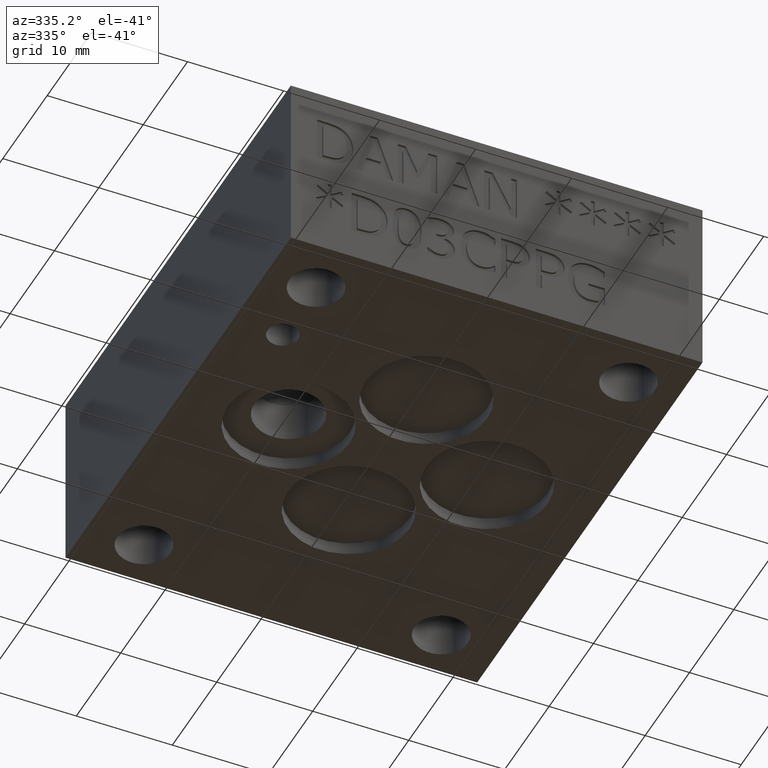
[diagram: clean part render]
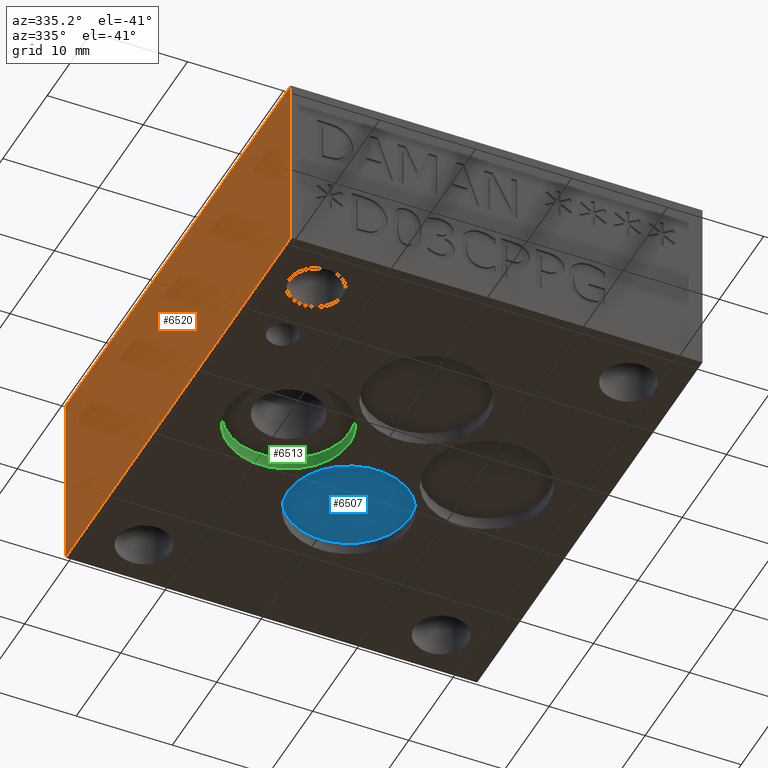
[diagram: same view with three faces highlighted in distinct colors, each labeled with its STEP entity id]
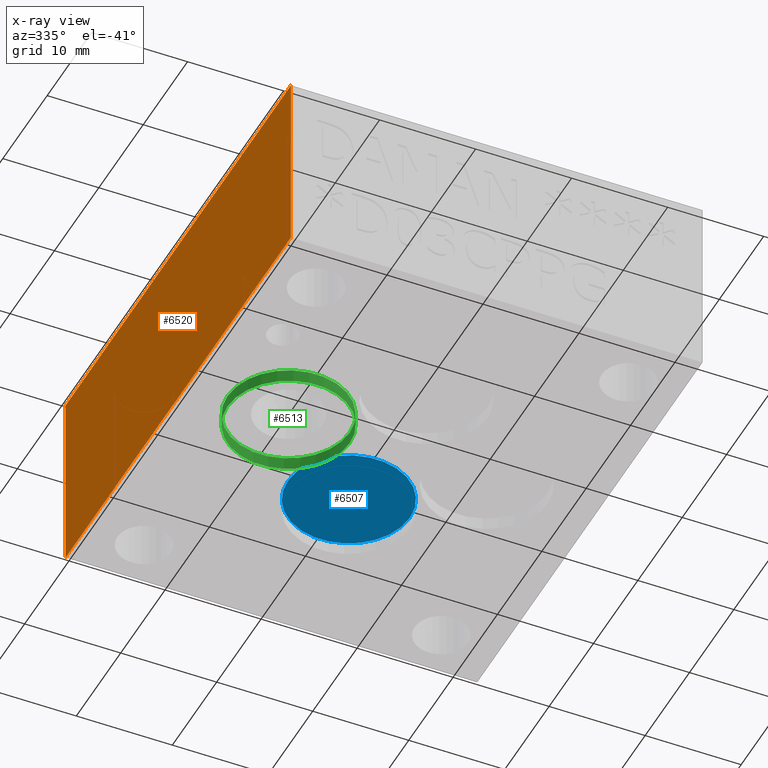
[diagram: x-ray of the same camera — body ghosted, the three highlighted faces saturated]
A machine part, auxiliary view with three faces highlighted in distinct colors.
The next image is the same camera in x-ray (body ghosted, the three faces saturated) — at least one of them is partly hidden behind the body in this view.
Their STEP definitions:

[orange] entity #6520 — the highlighted planar face has unit normal (-1, 0, 0).
#542=FACE_OUTER_BOUND('',#914,.T.);
#914=EDGE_LOOP('',(#5912,#5913,#5914,#5915));
#1569=LINE('',#11239,#2265);
#1604=LINE('',#11476,#2300);
#1620=LINE('',#11589,#2316);
#1621=LINE('',#11590,#2317);
#2265=VECTOR('',#7865,0.75);
#2300=VECTOR('',#7932,2.);
#2316=VECTOR('',#8060,0.75);
#2317=VECTOR('',#8061,2.);
#3074=VERTEX_POINT('',#11236);
#3075=VERTEX_POINT('',#11238);
#3109=VERTEX_POINT('',#11475);
#3150=VERTEX_POINT('',#11588);
#3978=EDGE_CURVE('',#3075,#3074,#1569,.T.);
#4029=EDGE_CURVE('',#3074,#3109,#1604,.T.);
#4083=EDGE_CURVE('',#3150,#3109,#1620,.T.);
#4084=EDGE_CURVE('',#3150,#3075,#1621,.T.);
#5912=ORIENTED_EDGE('',*,*,#4029,.T.);
#5913=ORIENTED_EDGE('',*,*,#4083,.F.);
#5914=ORIENTED_EDGE('',*,*,#4084,.T.);
#5915=ORIENTED_EDGE('',*,*,#3978,.T.);
#6180=PLANE('',#6817);
#6520=ADVANCED_FACE('',(#542),#6180,.T.);
#6817=AXIS2_PLACEMENT_3D('',#11587,#8058,#8059);
#7865=DIRECTION('',(0.,0.,1.));
#7932=DIRECTION('',(0.,1.,0.));
#8058=DIRECTION('center_axis',(-1.,0.,0.));
#8059=DIRECTION('ref_axis',(0.,0.,1.));
#8060=DIRECTION('',(0.,0.,1.));
#8061=DIRECTION('',(0.,-1.,0.));
#11236=CARTESIAN_POINT('',(0.,0.,0.75));
#11238=CARTESIAN_POINT('',(0.,0.,0.));
#11239=CARTESIAN_POINT('',(0.,0.,0.));
#11475=CARTESIAN_POINT('',(0.,2.,0.75));
#11476=CARTESIAN_POINT('',(0.,0.,0.75));
#11587=CARTESIAN_POINT('Origin',(0.,0.,0.));
#11588=CARTESIAN_POINT('',(0.,2.,0.));
#11589=CARTESIAN_POINT('',(0.,2.,0.));
#11590=CARTESIAN_POINT('',(0.,2.,0.));

[blue] entity #6507 — the highlighted planar face has unit normal (0, 0, 1).
#41=CIRCLE('',#6780,0.25);
#42=CIRCLE('',#6781,0.25);
#529=FACE_OUTER_BOUND('',#900,.T.);
#900=EDGE_LOOP('',(#5853,#5854));
#3124=VERTEX_POINT('',#11514);
#3125=VERTEX_POINT('',#11515);
#4048=EDGE_CURVE('',#3124,#3125,#41,.T.);
#4049=EDGE_CURVE('',#3125,#3124,#42,.T.);
#5853=ORIENTED_EDGE('',*,*,#4048,.T.);
#5854=ORIENTED_EDGE('',*,*,#4049,.T.);
#6177=PLANE('',#6779);
#6507=ADVANCED_FACE('',(#529),#6177,.F.);
#6779=AXIS2_PLACEMENT_3D('',#11513,#7972,#7973);
#6780=AXIS2_PLACEMENT_3D('',#11516,#7974,#7975);
#6781=AXIS2_PLACEMENT_3D('',#11517,#7976,#7977);
#7972=DIRECTION('center_axis',(0.,0.,1.));
#7973=DIRECTION('ref_axis',(1.,0.,0.));
#7974=DIRECTION('center_axis',(0.,0.,-1.));
#7975=DIRECTION('ref_axis',(1.,0.,0.));
#7976=DIRECTION('center_axis',(0.,0.,-1.));
#7977=DIRECTION('ref_axis',(1.,0.,0.));
#11513=CARTESIAN_POINT('Origin',(0.969,1.312,0.052));
#11514=CARTESIAN_POINT('',(1.094,1.312,0.052));
#11515=CARTESIAN_POINT('',(0.594,1.312,0.052));
#11516=CARTESIAN_POINT('Origin',(0.844,1.312,0.052));
#11517=CARTESIAN_POINT('Origin',(0.844,1.312,0.052));

[green] entity #6513 — the highlighted cylindrical surface (bore or boss wall) has radius 6.35 mm, axis along (0, 0, -1).
#20=CYLINDRICAL_SURFACE('',#6796,0.25);
#50=CIRCLE('',#6794,0.25);
#51=CIRCLE('',#6795,0.25);
#52=CIRCLE('',#6797,0.25);
#53=CIRCLE('',#6798,0.25);
#535=FACE_OUTER_BOUND('',#907,.T.);
#907=EDGE_LOOP('',(#5876,#5877,#5878,#5879,#5880,#5881));
#1613=LINE('',#11546,#2309);
#2309=VECTOR('',#8011,0.25);
#3133=VERTEX_POINT('',#11540);
#3134=VERTEX_POINT('',#11541);
#3135=VERTEX_POINT('',#11545);
#3136=VERTEX_POINT('',#11547);
#4060=EDGE_CURVE('',#3133,#3134,#50,.T.);
#4061=EDGE_CURVE('',#3134,#3133,#51,.T.);
#4062=EDGE_CURVE('',#3134,#3135,#1613,.T.);
#4063=EDGE_CURVE('',#3136,#3135,#52,.T.);
#4064=EDGE_CURVE('',#3135,#3136,#53,.T.);
#5876=ORIENTED_EDGE('',*,*,#4060,.F.);
#5877=ORIENTED_EDGE('',*,*,#4061,.F.);
#5878=ORIENTED_EDGE('',*,*,#4062,.T.);
#5879=ORIENTED_EDGE('',*,*,#4063,.F.);
#5880=ORIENTED_EDGE('',*,*,#4064,.F.);
#5881=ORIENTED_EDGE('',*,*,#4062,.F.);
#6513=ADVANCED_FACE('',(#535),#20,.F.);
#6794=AXIS2_PLACEMENT_3D('',#11542,#8005,#8006);
#6795=AXIS2_PLACEMENT_3D('',#11543,#8007,#8008);
#6796=AXIS2_PLACEMENT_3D('',#11544,#8009,#8010);
#6797=AXIS2_PLACEMENT_3D('',#11548,#8012,#8013);
#6798=AXIS2_PLACEMENT_3D('',#11549,#8014,#8015);
#8005=DIRECTION('center_axis',(0.,0.,-1.));
#8006=DIRECTION('ref_axis',(1.,0.,0.));
#8007=DIRECTION('center_axis',(0.,0.,-1.));
#8008=DIRECTION('ref_axis',(1.,0.,0.));
#8009=DIRECTION('center_axis',(0.,0.,-1.));
#8010=DIRECTION('ref_axis',(1.,0.,0.));
#8011=DIRECTION('',(0.,0.,-1.));
#8012=DIRECTION('center_axis',(0.,0.,1.));
#8013=DIRECTION('ref_axis',(1.,0.,0.));
#8014=DIRECTION('center_axis',(0.,0.,1.));
#8015=DIRECTION('ref_axis',(1.,0.,0.));
#11540=CARTESIAN_POINT('',(0.688,0.968,0.052));
#11541=CARTESIAN_POINT('',(0.188,0.968,0.052));
#11542=CARTESIAN_POINT('Origin',(0.438,0.968,0.052));
#11543=CARTESIAN_POINT('Origin',(0.438,0.968,0.052));
#11544=CARTESIAN_POINT('Origin',(0.438,0.968,0.026));
#11545=CARTESIAN_POINT('',(0.188,0.968,0.));
#11546=CARTESIAN_POINT('',(0.188,0.968,0.026));
#11547=CARTESIAN_POINT('',(0.688,0.968,0.));
#11548=CARTESIAN_POINT('Origin',(0.438,0.968,0.));
#11549=CARTESIAN_POINT('Origin',(0.438,0.968,0.));